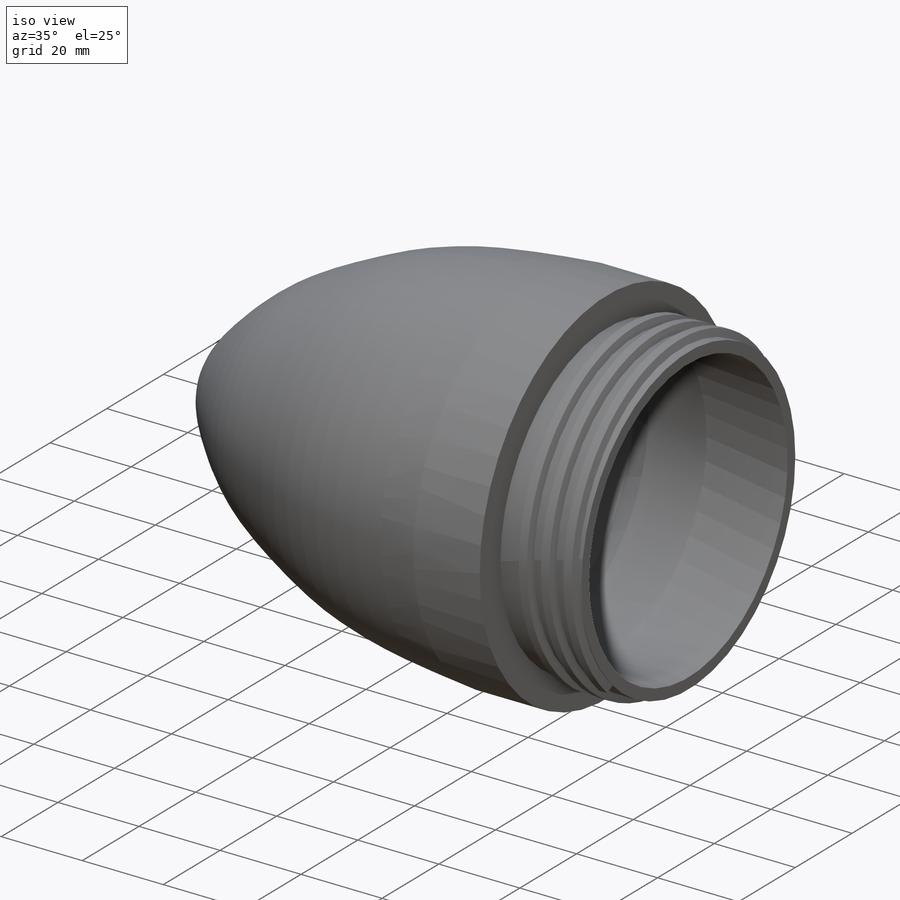
[diagram: iso view]
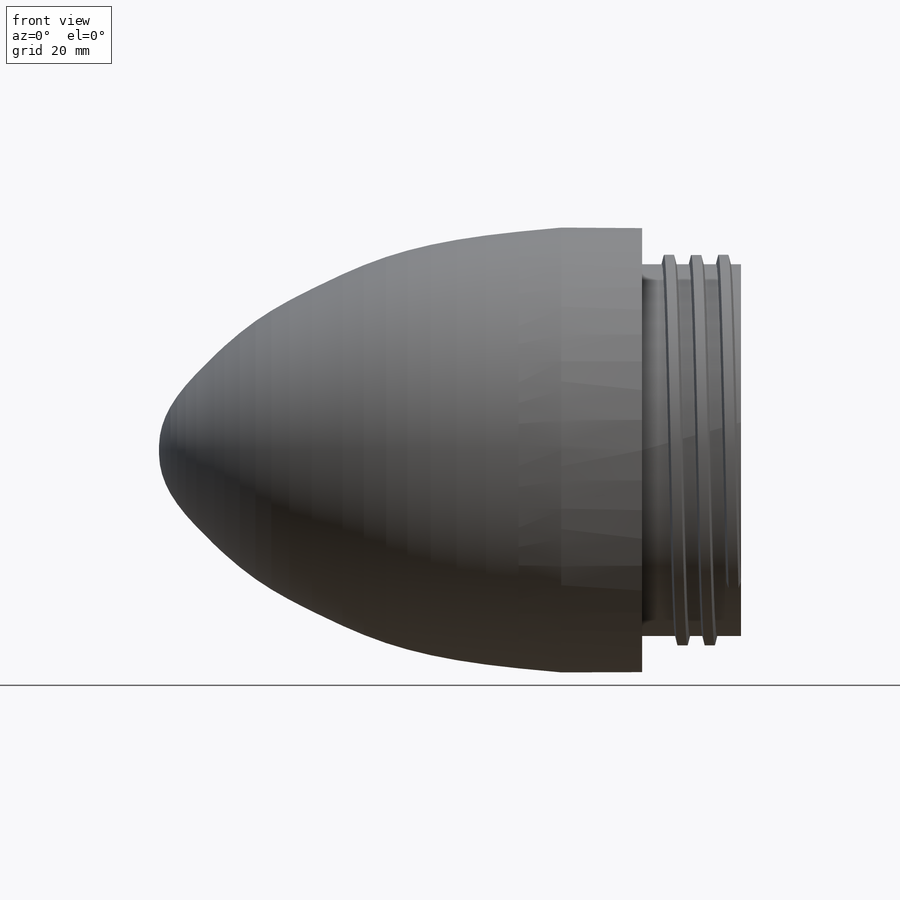
[diagram: front view]
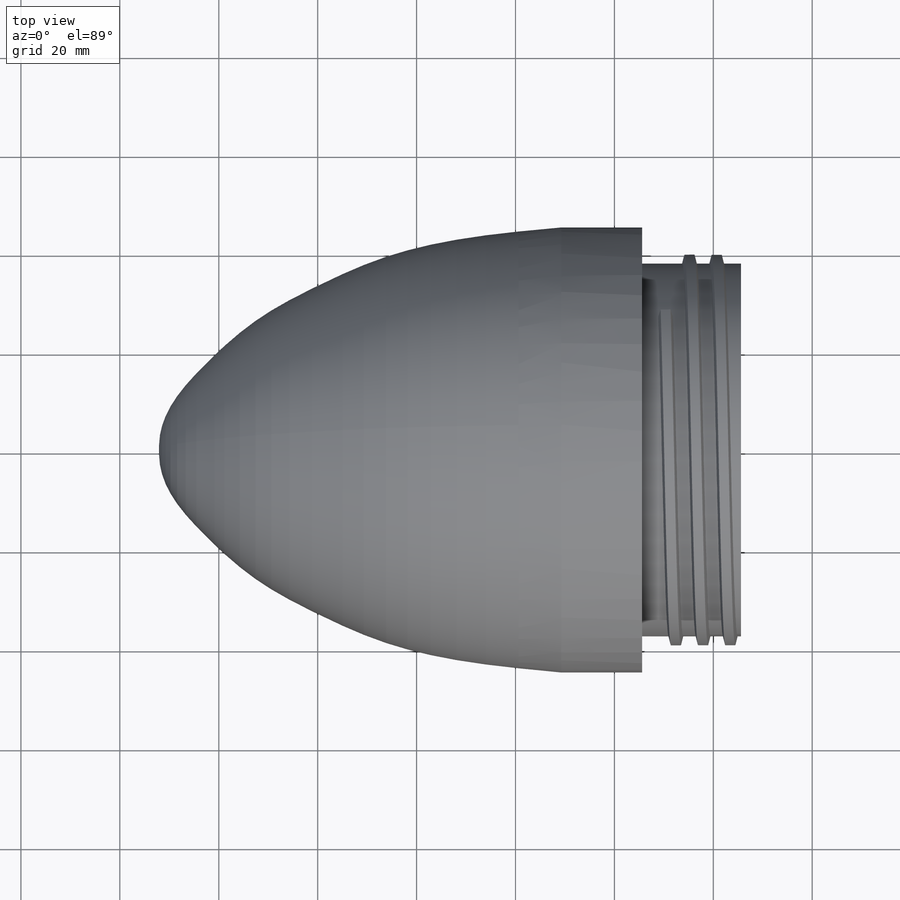
[diagram: top view]
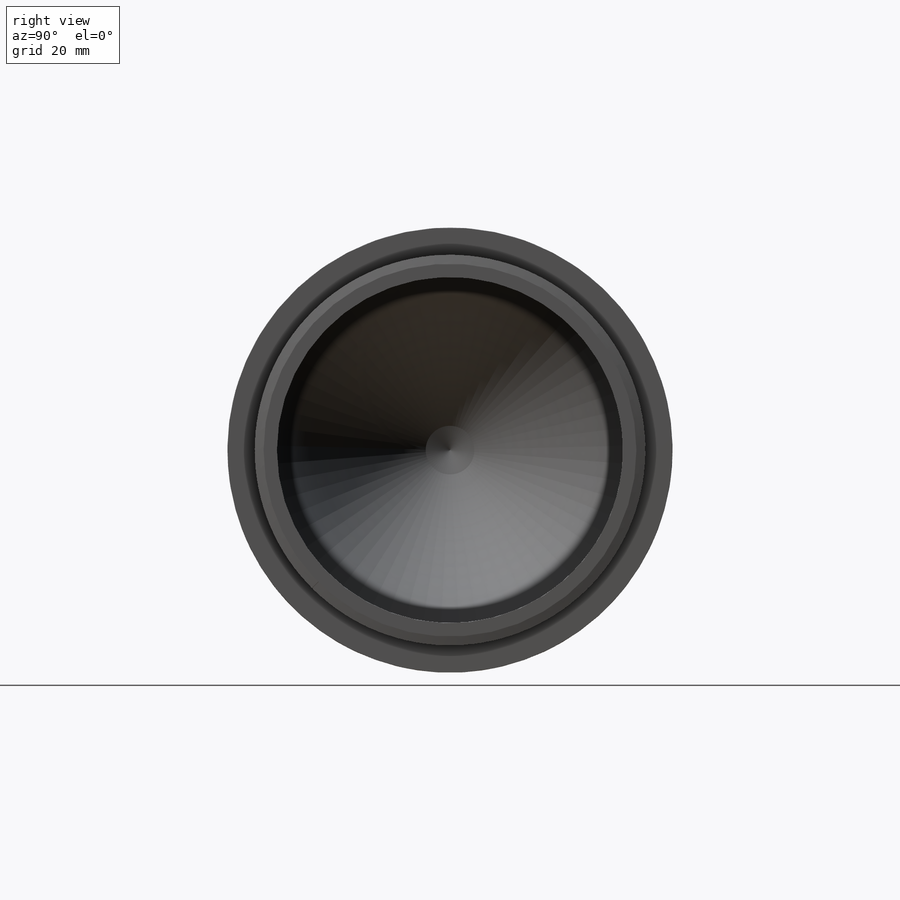
[diagram: right view]
SOLIDWORKS PART (.sldprt)
format: sldprt  version: not decoded by parser v0  size: 498,688 bytes
history: native  units: mm
features: plane x5, sketch x3, material x1, revolve x1, delete_body x1, helix x1, sweep x1 (+9 scaffold rows collapsed)
feature tree (22):
  scaffold x9  (default folders/planes/origin — collapsed)
  material  "材质 <未指定>"
  plane  "前视基准面"
  plane  "上视基准面"
  plane  "右视基准面"
  sketch  "草图3"  dims[c1.D1=5.0mm c1.D2=85.0mm c1.D3=60.0mm c2.D2=40.0mm c2.D3=40.0mm c2.D6=0.9906mm c3.D2=115.0mm c3.D6=55.0mm c3.D4=70.0mm c4.D2=30.0mm c4.D8=~147.233364mm c4.D5=~60.298496mm c5.D5=~0.013095deg c6.D5=~60.298496mm c7.D5=~0.013095deg c8.D5=~48.820923mm c8.D7=55.0mm c9.D7=~179.986905deg c10.D7=55.0mm c11.D7=~0.013095deg c12.D7=40.0mm c12.D8=55.0mm c12.D6=5.0mm c13.D8=20.0mm c13.D9=5.0mm c14.D8=20.0mm c14.D9=5.0mm c15.D8=20.0mm c15.D9=5.0mm c15.D10=132.0mm c15.D11=40.0mm c15.D12=100.0mm c15.D2=2.86mm c15.D3=20.0mm c16.D10=20.0mm c16.D2=37.7mm c16.D3=20.0mm c17.D10=2.7mm c17.D4=5.0mm c17.D5=5.0mm c17.D7=5.0mm c17.D2=5.0mm c18.D5=5.0mm c18.D2=5.0mm c19.D5=5.0mm]
  revolve  "旋转2"  Angle=360deg
  delete_body  "实体-删除1"
  plane  "基准面1"  Offset=1.5mm
  sketch  "草图4"  dims[D1=37.7mm]
  helix  "螺旋线/涡状线1"  Pitch=13.75mm
  plane  "基准面2"
  sketch  "草图5"  dims[D1=2.0mm]
  sweep  "扫描1"
decode coverage: 5 of 7 modeling features carry decoded parameters
note: ~ marks probable driven/reference dimensions
note: suppression state not decoded; provenance and decode notes live in map.json
